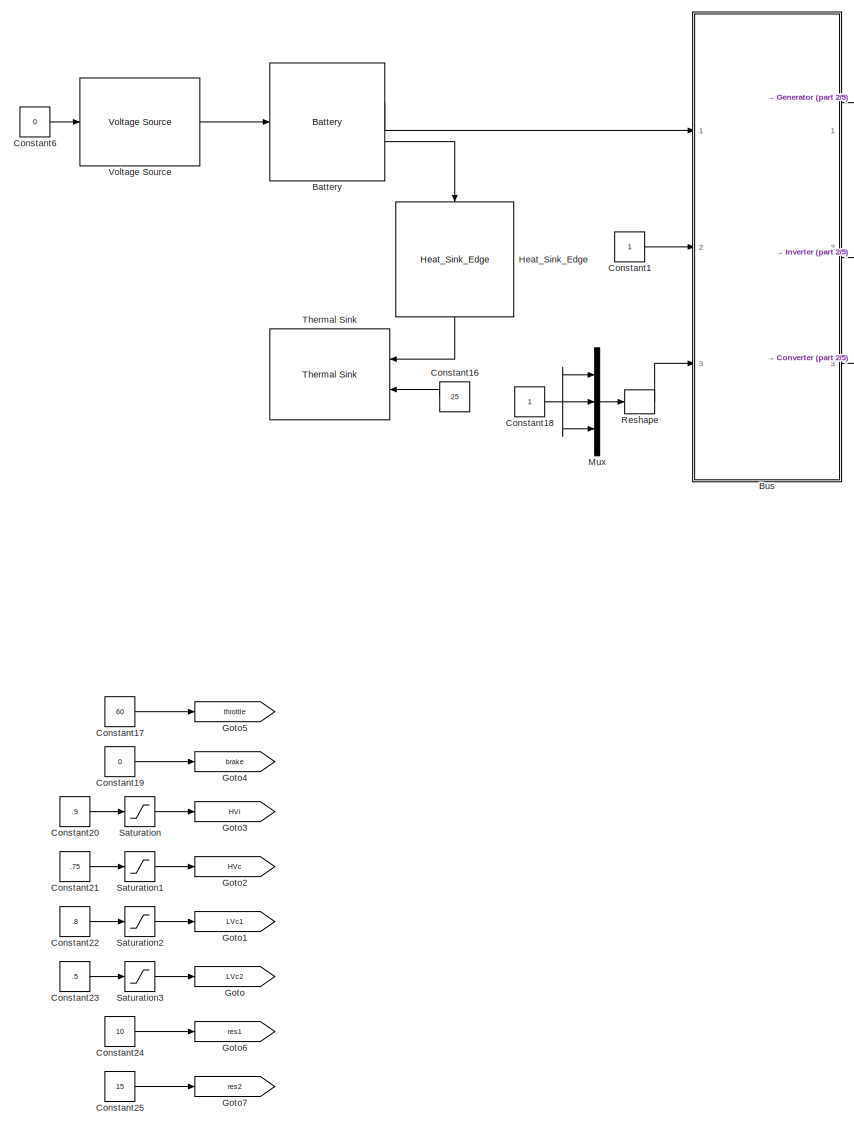
[diagram: root canvas - part 1/5, top left region]
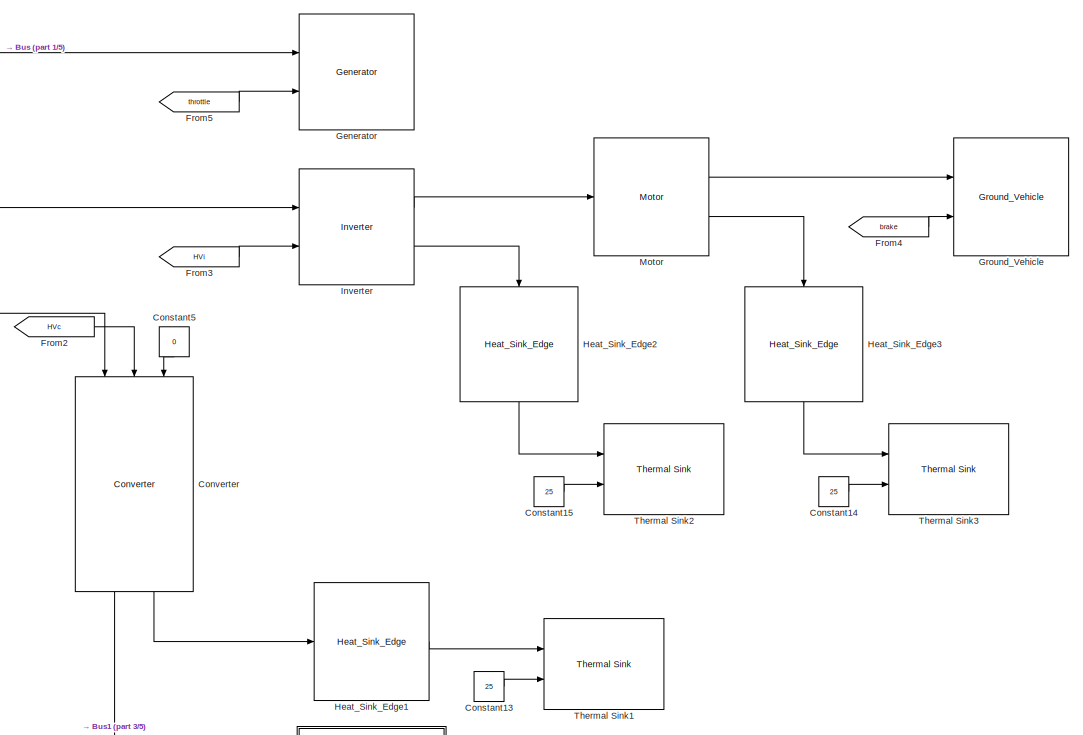
[diagram: root canvas - part 2/5, top center region]
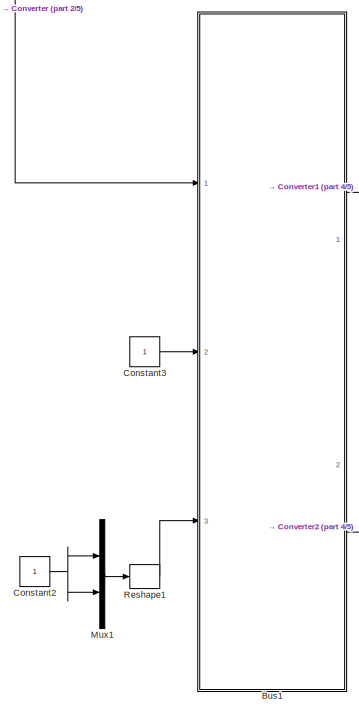
[diagram: root canvas - part 3/5, central region]
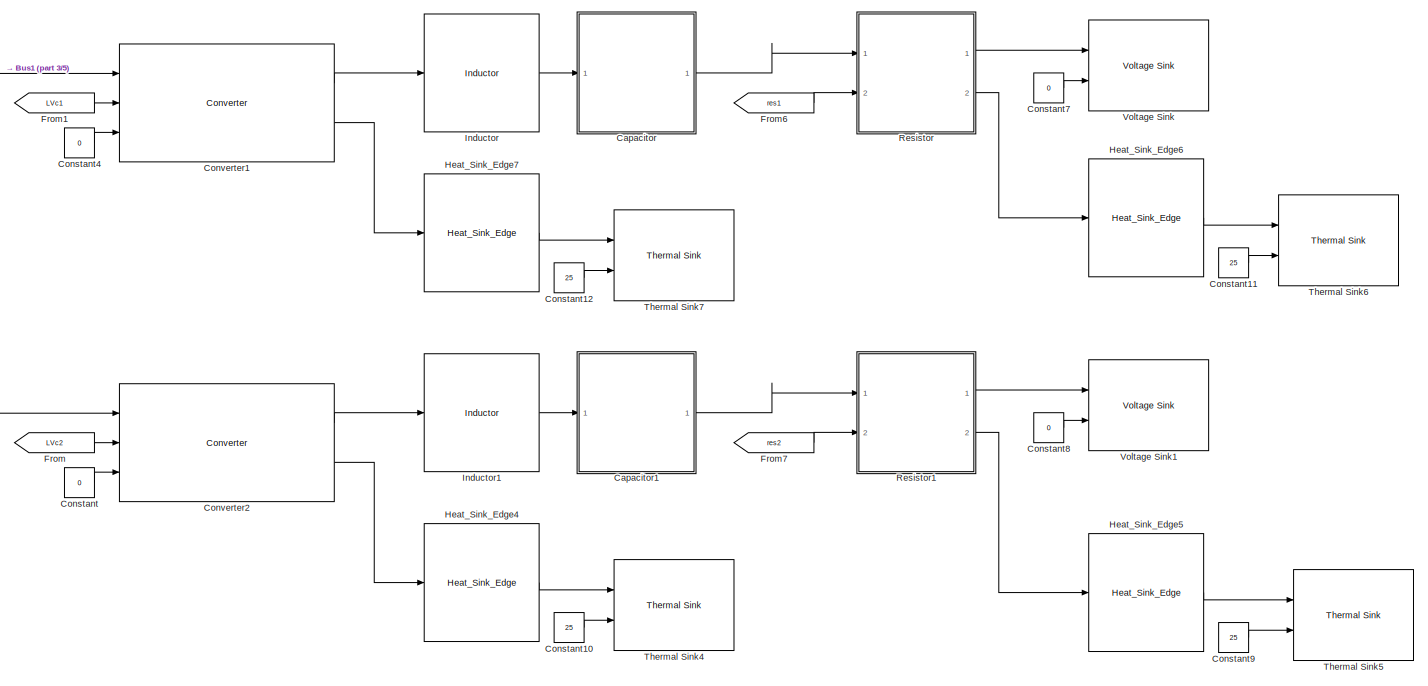
[diagram: root canvas - part 4/5, middle right region]
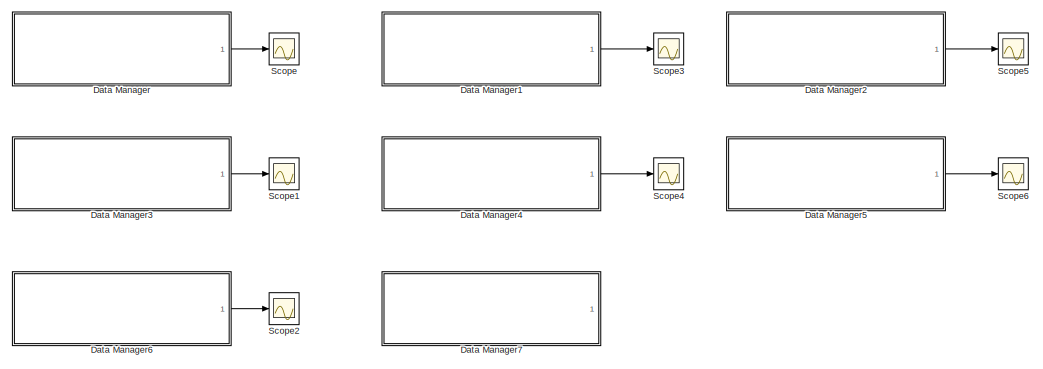
[diagram: root canvas - part 5/5, bottom left region]
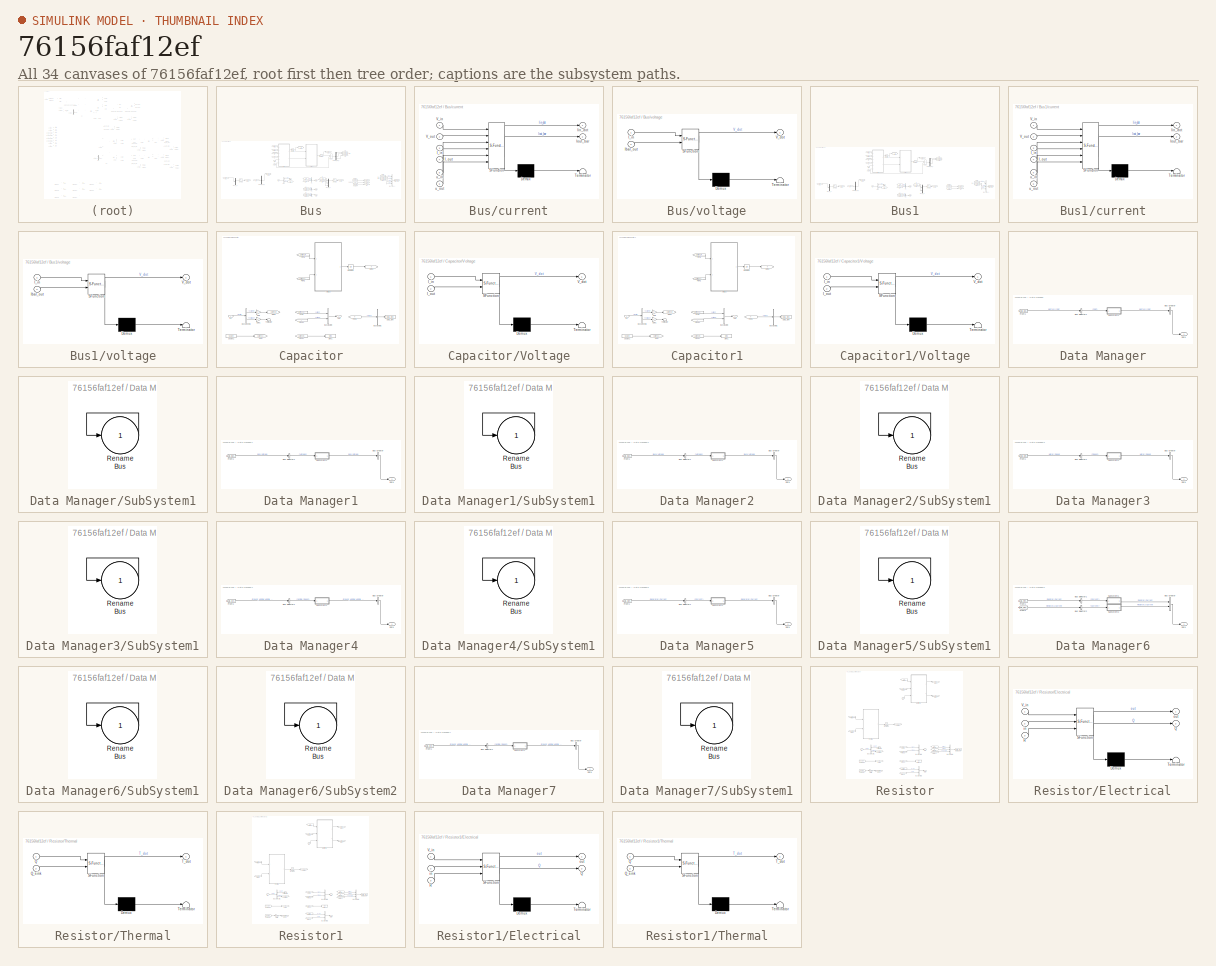
[diagram: thumbnail index - all 34 canvases of the model, root first then tree order]
MODEL slx_76156faf12ef
KIND model
CONFIG AbsTol = auto
CONFIG FixedStep = auto
CONFIG MaxStep = auto
CONFIG MinStep = auto
CONFIG RelTol = 1e-3
CONFIG SampleTimeConstraint = Unconstrained
CONFIG Solver = ode23tb
CONFIG SolverMode = Auto
CONFIG SolverName = ode23tb
CONFIG StartTime = 0.0
CONFIG StopTime = 1000
BLOCK [Reference] Battery  REF=DAEMOT_Lib/Dyn Electrical Comp/Battery
  Ports = [1, 2]
  SourceBlock = DAEMOT_Lib/Dyn Electrical Comp/Battery
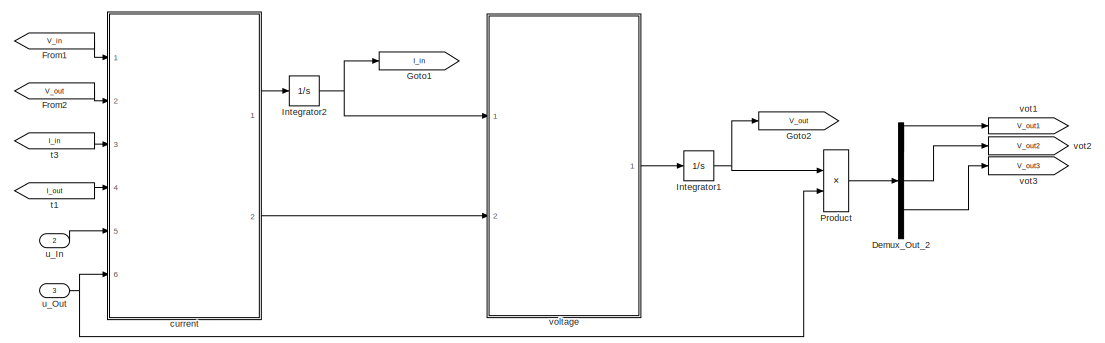
[diagram: Bus - part 1/3, top center region]
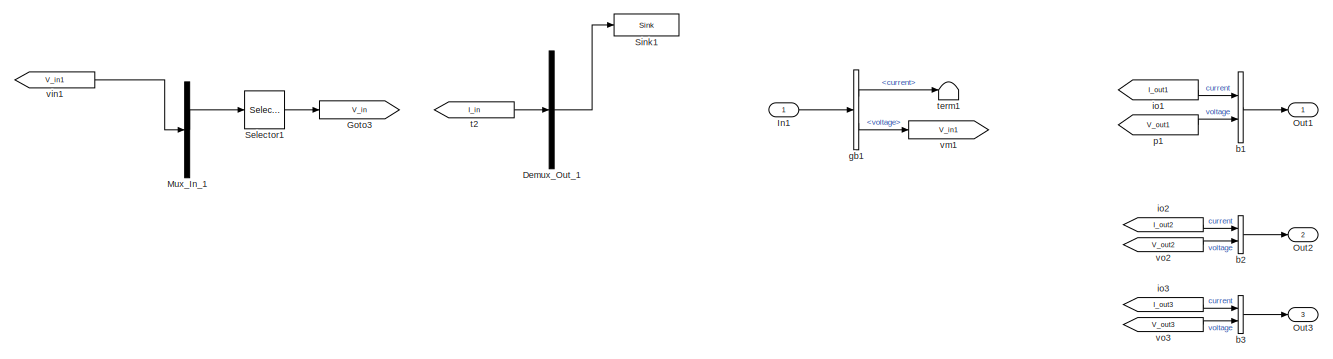
[diagram: Bus - part 2/3, bottom left region]
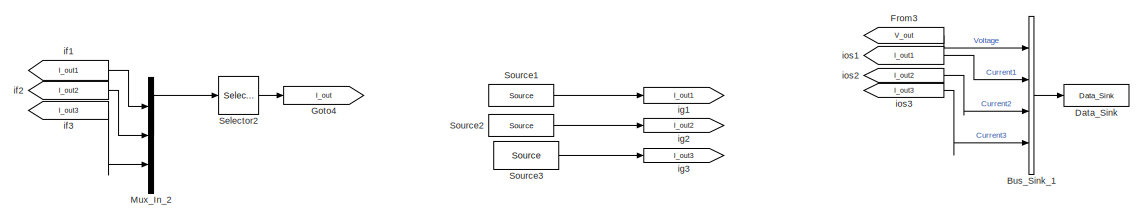
[diagram: Bus - part 3/3, bottom right region]
BLOCK [SubSystem] Bus
  AncestorBlock = DAEMOT_Lib/Electrical Components Chris/Bus
  CopyFcn = h      = get_param(gcb,'handle');   % Get block handle\nblk    = gcb; \n\nset_param(blk, 'LinkStatus', 'inactive')\nclear h\nclear blk
  Ports = [3, 3]
  RequestExecContextInheritance = off
  Variant = off
BLOCK [BusCreator] Bus/Bus_Sink_1
  DisplayOption = bar
  InheritFromInputs = on
  Inputs = 4
  Ports = [4, 1]
BLOCK [Reference] Bus/Data_Sink  REF=DAEMOT_Lib/Support Functions/Data_Sink
  Ports = [1]
  SourceBlock = DAEMOT_Lib/Support Functions/Data_Sink
  SourceType = Data Sink
BLOCK [Demux] Bus/Demux_Out_1
  DisplayOption = bar
  Outputs = 1
  Ports = [1, 1]
BLOCK [Demux] Bus/Demux_Out_2
  DisplayOption = bar
  Outputs = 3
  Ports = [1, 3]
BLOCK [From] Bus/From1
  CloseFcn = tagdialog Close
  GotoTag = V_in
BLOCK [From] Bus/From2
  CloseFcn = tagdialog Close
  GotoTag = V_out
BLOCK [From] Bus/From3
  CloseFcn = tagdialog Close
  GotoTag = V_out
BLOCK [Goto] Bus/Goto1
  GotoTag = I_in
BLOCK [Goto] Bus/Goto2
  GotoTag = V_out
BLOCK [Goto] Bus/Goto3
  GotoTag = V_in
BLOCK [Goto] Bus/Goto4
  GotoTag = I_out
BLOCK [Inport] Bus/In1
  IconDisplay = Port number
BLOCK [Integrator] Bus/Integrator1
  InitialCondition = V_initial
  Ports = [1, 1]
BLOCK [Integrator] Bus/Integrator2
  InitialCondition = I_initial*ones(Num_In,1)
  Ports = [1, 1]
BLOCK [Mux] Bus/Mux_In_1
  DisplayOption = bar
  Inputs = 1
  Ports = [1, 1]
BLOCK [Mux] Bus/Mux_In_2
  DisplayOption = bar
  Inputs = 3
  Ports = [3, 1]
BLOCK [Outport] Bus/Out1
  IconDisplay = Port number
BLOCK [Outport] Bus/Out2
  IconDisplay = Port number
  Port = 2
BLOCK [Outport] Bus/Out3
  IconDisplay = Port number
  Port = 3
BLOCK [Product] Bus/Product
  InputSameDT = off
  OutDataTypeStr = Inherit: Inherit via internal rule
  Ports = [2, 1]
  RndMeth = Floor
  SaturateOnIntegerOverflow = off
BLOCK [Selector] Bus/Selector1
  IndexOptions = Index vector (dialog)
  Indices = [1 ]
  InputPortWidth = 1
  OutputSizes = 1
  Ports = [1, 1]
BLOCK [Selector] Bus/Selector2
  IndexOptions = Index vector (dialog)
  Indices = [1 2 3 ]
  InputPortWidth = 3
  OutputSizes = 1
  Ports = [1, 1]
BLOCK [Reference] Bus/Sink1  REF=DAEMOT_Lib/Support Functions/Sink
  Ports = [1]
  SourceBlock = DAEMOT_Lib/Support Functions/Sink
  SourceType = Sink
BLOCK [Reference] Bus/Source1  REF=DAEMOT_Lib/Support Functions/Source
  Ports = [0, 1]
  SourceBlock = DAEMOT_Lib/Support Functions/Source
  SourceType = Source
BLOCK [Reference] Bus/Source2  REF=DAEMOT_Lib/Support Functions/Source
  Ports = [0, 1]
  SourceBlock = DAEMOT_Lib/Support Functions/Source
  SourceType = Source
BLOCK [Reference] Bus/Source3  REF=DAEMOT_Lib/Support Functions/Source
  Ports = [0, 1]
  SourceBlock = DAEMOT_Lib/Support Functions/Source
  SourceType = Source
BLOCK [BusCreator] Bus/b1
  DisplayOption = bar
  InheritFromInputs = on
  Inputs = 2
  Ports = [2, 1]
BLOCK [BusCreator] Bus/b2
  DisplayOption = bar
  InheritFromInputs = on
  Inputs = 2
  Ports = [2, 1]
BLOCK [BusCreator] Bus/b3
  DisplayOption = bar
  InheritFromInputs = on
  Inputs = 2
  Ports = [2, 1]
BLOCK [SubSystem] Bus/current
  ErrorFcn = Stateflow.Translate.translate
  PermitHierarchicalResolution = ExplicitOnly
  Ports = [6, 2]
  RequestExecContextInheritance = off
  SFBlockType = MATLAB Function
  TreatAsAtomicUnit = on
  Variant = off
BLOCK [Demux] Bus/current/ Demux 
  Outputs = 1
  Ports = [1, 1]
BLOCK [S-Function] Bus/current/ SFunction 
  EnableBusSupport = on
  FunctionName = sf_sfun
  Parameters = L,R
  PortCounts = [6 3]
  Ports = [6, 3]
  SFunctionDeploymentMode = off
  Tag = Stateflow S-Function HILModel 43
BLOCK [Terminator] Bus/current/ Terminator 
BLOCK [Inport] Bus/current/I_in
  IconDisplay = Port number
  Port = 3
BLOCK [Inport] Bus/current/I_out
  IconDisplay = Port number
  Port = 4
BLOCK [Outport] Bus/current/Iin_dot
  IconDisplay = Port number
BLOCK [Outport] Bus/current/Iout_bar
  IconDisplay = Port number
  Port = 2
BLOCK [Inport] Bus/current/V_in
  IconDisplay = Port number
BLOCK [Inport] Bus/current/V_out
  IconDisplay = Port number
  Port = 2
BLOCK [Inport] Bus/current/u_in
  IconDisplay = Port number
  Port = 5
BLOCK [Inport] Bus/current/u_out
  IconDisplay = Port number
  Port = 6
BLOCK [BusSelector] Bus/gb1
  OutputSignals = current,voltage
  Ports = [1, 2]
BLOCK [From] Bus/if1
  GotoTag = I_out1
BLOCK [From] Bus/if2
  GotoTag = I_out2
BLOCK [From] Bus/if3
  GotoTag = I_out3
BLOCK [Goto] Bus/ig1
  GotoTag = I_out1
BLOCK [Goto] Bus/ig2
  GotoTag = I_out2
BLOCK [Goto] Bus/ig3
  GotoTag = I_out3
BLOCK [From] Bus/io1
  GotoTag = I_out1
BLOCK [From] Bus/io2
  GotoTag = I_out2
BLOCK [From] Bus/io3
  GotoTag = I_out3
BLOCK [From] Bus/ios1
  GotoTag = I_out1
BLOCK [From] Bus/ios2
  GotoTag = I_out2
BLOCK [From] Bus/ios3
  GotoTag = I_out3
BLOCK [From] Bus/p1
  GotoTag = V_out1
BLOCK [From] Bus/t1
  CloseFcn = tagdialog Close
  GotoTag = I_out
BLOCK [From] Bus/t2
  CloseFcn = tagdialog Close
  GotoTag = I_in
BLOCK [From] Bus/t3
  CloseFcn = tagdialog Close
  GotoTag = I_in
BLOCK [Terminator] Bus/term1
BLOCK [Inport] Bus/u_In
  IconDisplay = Port number
  Port = 2
BLOCK [Inport] Bus/u_Out
  IconDisplay = Port number
  Port = 3
BLOCK [From] Bus/vin1
  CloseFcn = tagdialog Close
  GotoTag = V_in1
BLOCK [Goto] Bus/vm1
  GotoTag = V_in1
BLOCK [From] Bus/vo2
  GotoTag = V_out2
BLOCK [From] Bus/vo3
  GotoTag = V_out3
BLOCK [SubSystem] Bus/voltage
  ErrorFcn = Stateflow.Translate.translate
  PermitHierarchicalResolution = ExplicitOnly
  Ports = [2, 1]
  RequestExecContextInheritance = off
  SFBlockType = MATLAB Function
  TreatAsAtomicUnit = on
  Variant = off
BLOCK [Demux] Bus/voltage/ Demux 
  Outputs = 1
  Ports = [1, 1]
BLOCK [S-Function] Bus/voltage/ SFunction 
  EnableBusSupport = on
  FunctionName = sf_sfun
  Parameters = C
  PortCounts = [2 2]
  Ports = [2, 2]
  SFunctionDeploymentMode = off
  Tag = Stateflow S-Function HILModel 44
BLOCK [Terminator] Bus/voltage/ Terminator 
BLOCK [Inport] Bus/voltage/I_in
  IconDisplay = Port number
BLOCK [Inport] Bus/voltage/Ibar_out
  IconDisplay = Port number
  Port = 2
BLOCK [Outport] Bus/voltage/V_dot
  IconDisplay = Port number
BLOCK [Goto] Bus/vot1
  GotoTag = V_out1
BLOCK [Goto] Bus/vot2
  GotoTag = V_out2
BLOCK [Goto] Bus/vot3
  GotoTag = V_out3
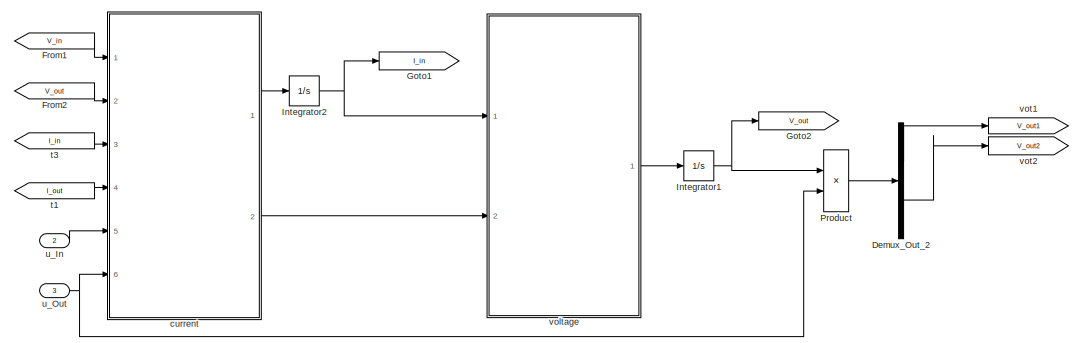
[diagram: Bus1 - part 1/3, top center region]
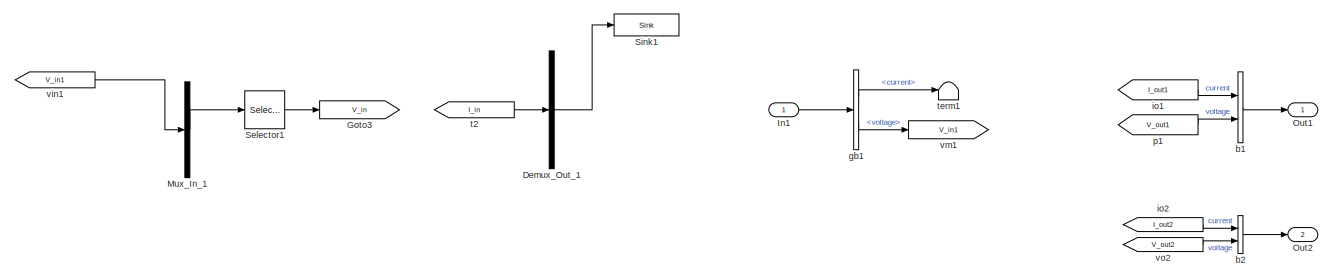
[diagram: Bus1 - part 2/3, bottom left region]
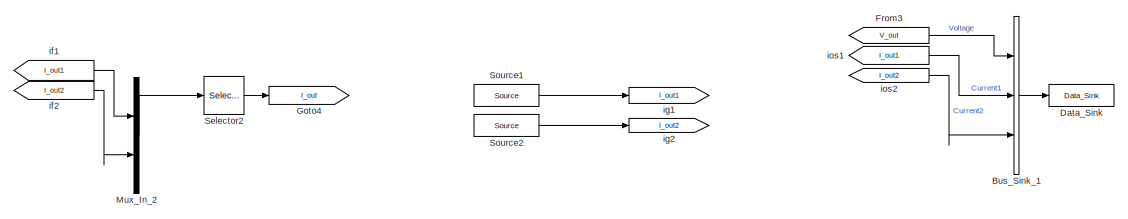
[diagram: Bus1 - part 3/3, bottom right region]
BLOCK [SubSystem] Bus1
  AncestorBlock = DAEMOT_Lib/Electrical Components Chris/Bus
  CopyFcn = h      = get_param(gcb,'handle');   % Get block handle\nblk    = gcb; \n\nset_param(blk, 'LinkStatus', 'inactive')\nclear h\nclear blk
  Ports = [3, 2]
  RequestExecContextInheritance = off
  Variant = off
BLOCK [BusCreator] Bus1/Bus_Sink_1
  DisplayOption = bar
  InheritFromInputs = on
  Inputs = 3
  Ports = [3, 1]
BLOCK [Reference] Bus1/Data_Sink  REF=DAEMOT_Lib/Support Functions/Data_Sink
  Ports = [1]
  SourceBlock = DAEMOT_Lib/Support Functions/Data_Sink
  SourceType = Data Sink
BLOCK [Demux] Bus1/Demux_Out_1
  DisplayOption = bar
  Outputs = 1
  Ports = [1, 1]
BLOCK [Demux] Bus1/Demux_Out_2
  DisplayOption = bar
  Outputs = 2
  Ports = [1, 2]
BLOCK [From] Bus1/From1
  CloseFcn = tagdialog Close
  GotoTag = V_in
BLOCK [From] Bus1/From2
  CloseFcn = tagdialog Close
  GotoTag = V_out
BLOCK [From] Bus1/From3
  CloseFcn = tagdialog Close
  GotoTag = V_out
BLOCK [Goto] Bus1/Goto1
  GotoTag = I_in
BLOCK [Goto] Bus1/Goto2
  GotoTag = V_out
BLOCK [Goto] Bus1/Goto3
  GotoTag = V_in
BLOCK [Goto] Bus1/Goto4
  GotoTag = I_out
BLOCK [Inport] Bus1/In1
  IconDisplay = Port number
BLOCK [Integrator] Bus1/Integrator1
  InitialCondition = V_initial
  Ports = [1, 1]
BLOCK [Integrator] Bus1/Integrator2
  InitialCondition = I_initial*ones(Num_In,1)
  Ports = [1, 1]
BLOCK [Mux] Bus1/Mux_In_1
  DisplayOption = bar
  Inputs = 1
  Ports = [1, 1]
BLOCK [Mux] Bus1/Mux_In_2
  DisplayOption = bar
  Inputs = 2
  Ports = [2, 1]
BLOCK [Outport] Bus1/Out1
  IconDisplay = Port number
BLOCK [Outport] Bus1/Out2
  IconDisplay = Port number
  Port = 2
BLOCK [Product] Bus1/Product
  InputSameDT = off
  OutDataTypeStr = Inherit: Inherit via internal rule
  Ports = [2, 1]
  RndMeth = Floor
  SaturateOnIntegerOverflow = off
BLOCK [Selector] Bus1/Selector1
  IndexOptions = Index vector (dialog)
  Indices = [1 ]
  InputPortWidth = 1
  OutputSizes = 1
  Ports = [1, 1]
BLOCK [Selector] Bus1/Selector2
  IndexOptions = Index vector (dialog)
  Indices = [1 2 ]
  InputPortWidth = 2
  OutputSizes = 1
  Ports = [1, 1]
BLOCK [Reference] Bus1/Sink1  REF=DAEMOT_Lib/Support Functions/Sink
  Ports = [1]
  SourceBlock = DAEMOT_Lib/Support Functions/Sink
  SourceType = Sink
BLOCK [Reference] Bus1/Source1  REF=DAEMOT_Lib/Support Functions/Source
  Ports = [0, 1]
  SourceBlock = DAEMOT_Lib/Support Functions/Source
  SourceType = Source
BLOCK [Reference] Bus1/Source2  REF=DAEMOT_Lib/Support Functions/Source
  Ports = [0, 1]
  SourceBlock = DAEMOT_Lib/Support Functions/Source
  SourceType = Source
BLOCK [BusCreator] Bus1/b1
  DisplayOption = bar
  InheritFromInputs = on
  Inputs = 2
  Ports = [2, 1]
BLOCK [BusCreator] Bus1/b2
  DisplayOption = bar
  InheritFromInputs = on
  Inputs = 2
  Ports = [2, 1]
BLOCK [SubSystem] Bus1/current
  ErrorFcn = Stateflow.Translate.translate
  PermitHierarchicalResolution = ExplicitOnly
  Ports = [6, 2]
  RequestExecContextInheritance = off
  SFBlockType = MATLAB Function
  TreatAsAtomicUnit = on
  Variant = off
BLOCK [Demux] Bus1/current/ Demux 
  Outputs = 1
  Ports = [1, 1]
BLOCK [S-Function] Bus1/current/ SFunction 
  EnableBusSupport = on
  FunctionName = sf_sfun
  Parameters = L,R
  PortCounts = [6 3]
  Ports = [6, 3]
  SFunctionDeploymentMode = off
  Tag = Stateflow S-Function HILModel 1
BLOCK [Terminator] Bus1/current/ Terminator 
BLOCK [Inport] Bus1/current/I_in
  IconDisplay = Port number
  Port = 3
BLOCK [Inport] Bus1/current/I_out
  IconDisplay = Port number
  Port = 4
BLOCK [Outport] Bus1/current/Iin_dot
  IconDisplay = Port number
BLOCK [Outport] Bus1/current/Iout_bar
  IconDisplay = Port number
  Port = 2
BLOCK [Inport] Bus1/current/V_in
  IconDisplay = Port number
BLOCK [Inport] Bus1/current/V_out
  IconDisplay = Port number
  Port = 2
BLOCK [Inport] Bus1/current/u_in
  IconDisplay = Port number
  Port = 5
BLOCK [Inport] Bus1/current/u_out
  IconDisplay = Port number
  Port = 6
BLOCK [BusSelector] Bus1/gb1
  OutputSignals = current,voltage
  Ports = [1, 2]
BLOCK [From] Bus1/if1
  GotoTag = I_out1
BLOCK [From] Bus1/if2
  GotoTag = I_out2
BLOCK [Goto] Bus1/ig1
  GotoTag = I_out1
BLOCK [Goto] Bus1/ig2
  GotoTag = I_out2
BLOCK [From] Bus1/io1
  GotoTag = I_out1
BLOCK [From] Bus1/io2
  GotoTag = I_out2
BLOCK [From] Bus1/ios1
  GotoTag = I_out1
BLOCK [From] Bus1/ios2
  GotoTag = I_out2
BLOCK [From] Bus1/p1
  GotoTag = V_out1
BLOCK [From] Bus1/t1
  CloseFcn = tagdialog Close
  GotoTag = I_out
BLOCK [From] Bus1/t2
  CloseFcn = tagdialog Close
  GotoTag = I_in
BLOCK [From] Bus1/t3
  CloseFcn = tagdialog Close
  GotoTag = I_in
BLOCK [Terminator] Bus1/term1
BLOCK [Inport] Bus1/u_In
  IconDisplay = Port number
  Port = 2
BLOCK [Inport] Bus1/u_Out
  IconDisplay = Port number
  Port = 3
BLOCK [From] Bus1/vin1
  CloseFcn = tagdialog Close
  GotoTag = V_in1
BLOCK [Goto] Bus1/vm1
  GotoTag = V_in1
BLOCK [From] Bus1/vo2
  GotoTag = V_out2
BLOCK [SubSystem] Bus1/voltage
  ErrorFcn = Stateflow.Translate.translate
  PermitHierarchicalResolution = ExplicitOnly
  Ports = [2, 1]
  RequestExecContextInheritance = off
  SFBlockType = MATLAB Function
  TreatAsAtomicUnit = on
  Variant = off
BLOCK [Demux] Bus1/voltage/ Demux 
  Outputs = 1
  Ports = [1, 1]
BLOCK [S-Function] Bus1/voltage/ SFunction 
  EnableBusSupport = on
  FunctionName = sf_sfun
  Parameters = C
  PortCounts = [2 2]
  Ports = [2, 2]
  SFunctionDeploymentMode = off
  Tag = Stateflow S-Function HILModel 2
BLOCK [Terminator] Bus1/voltage/ Terminator 
BLOCK [Inport] Bus1/voltage/I_in
  IconDisplay = Port number
BLOCK [Inport] Bus1/voltage/Ibar_out
  IconDisplay = Port number
  Port = 2
BLOCK [Outport] Bus1/voltage/V_dot
  IconDisplay = Port number
BLOCK [Goto] Bus1/vot1
  GotoTag = V_out1
BLOCK [Goto] Bus1/vot2
  GotoTag = V_out2
BLOCK [SubSystem] Capacitor
  AncestorBlock = DAEMOT_Lib/Electrical Components Chris/Capacitor
  Ports = [1, 1]
  RequestExecContextInheritance = off
  Variant = off
BLOCK [BusCreator] Capacitor/Bus Creator1
  DisplayOption = bar
  InheritFromInputs = on
  Inputs = 1
  Ports = [1, 1]
BLOCK [BusCreator] Capacitor/Bus Creator3
  DisplayOption = bar
  InheritFromInputs = on
  Inputs = 2
  Ports = [2, 1]
BLOCK [BusSelector] Capacitor/Bus Selector1
  OutputSignals = current,voltage
  Ports = [1, 2]
BLOCK [Reference] Capacitor/Data_Sink  REF=DAEMOT_Lib/Support Functions/Data_Sink
  Ports = [1]
  SourceBlock = DAEMOT_Lib/Support Functions/Data_Sink
  SourceType = Data Sink
BLOCK [From] Capacitor/From1
  GotoTag = Current_out
BLOCK [From] Capacitor/From10
  GotoTag = V
BLOCK [From] Capacitor/From12
  GotoTag = Current_in
BLOCK [From] Capacitor/From2
  GotoTag = V
BLOCK [From] Capacitor/From6
  GotoTag = Current_in
BLOCK [From] Capacitor/From8
  GotoTag = Current_out
BLOCK [Gain] Capacitor/Gain
  OutDataTypeStr = Inherit: Inherit via internal rule
  ParamDataTypeStr = Inherit: Inherit via internal rule
  SaturateOnIntegerOverflow = off
BLOCK [Gain] Capacitor/Gain1
  OutDataTypeStr = Inherit: Inherit via internal rule
  ParamDataTypeStr = Inherit: Inherit via internal rule
  SaturateOnIntegerOverflow = off
BLOCK [Goto] Capacitor/Goto1
  GotoTag = V
BLOCK [Goto] Capacitor/Goto2
  GotoTag = Current_in
BLOCK [Goto] Capacitor/Goto7
  GotoTag = Current_out
BLOCK [Inport] Capacitor/In1
  IconDisplay = Port number
BLOCK [Integrator] Capacitor/Integrator2
  InitialCondition = V_initial
  Ports = [1, 1]
BLOCK [Outport] Capacitor/Out1
  IconDisplay = Port number
BLOCK [Reference] Capacitor/Sink1  REF=DAEMOT_Lib/Support Functions/Sink
  Ports = [1]
  SourceBlock = DAEMOT_Lib/Support Functions/Sink
  SourceType = Sink
BLOCK [Reference] Capacitor/Source1  REF=DAEMOT_Lib/Support Functions/Source
  Ports = [0, 1]
  SourceBlock = DAEMOT_Lib/Support Functions/Source
  SourceType = Source
BLOCK [Terminator] Capacitor/Terminator
BLOCK [SubSystem] Capacitor/Voltage
  ErrorFcn = Stateflow.Translate.translate
  PermitHierarchicalResolution = ExplicitOnly
  Ports = [2, 1]
  RequestExecContextInheritance = off
  SFBlockType = MATLAB Function
  TreatAsAtomicUnit = on
  Variant = off
BLOCK [Demux] Capacitor/Voltage/ Demux 
  Outputs = 1
  Ports = [1, 1]
BLOCK [S-Function] Capacitor/Voltage/ SFunction 
  EnableBusSupport = on
  FunctionName = sf_sfun
  Parameters = C
  PortCounts = [2 2]
  Ports = [2, 2]
  SFunctionDeploymentMode = off
  Tag = Stateflow S-Function HILModel 5
BLOCK [Terminator] Capacitor/Voltage/ Terminator 
BLOCK [Inport] Capacitor/Voltage/I_in
  IconDisplay = Port number
BLOCK [Inport] Capacitor/Voltage/I_out
  IconDisplay = Port number
  Port = 2
BLOCK [Outport] Capacitor/Voltage/V_dot
  IconDisplay = Port number
BLOCK [SubSystem] Capacitor1
  AncestorBlock = DAEMOT_Lib/Electrical Components Chris/Capacitor
  Ports = [1, 1]
  RequestExecContextInheritance = off
  Variant = off
BLOCK [BusCreator] Capacitor1/Bus Creator1
  DisplayOption = bar
  InheritFromInputs = on
  Inputs = 1
  Ports = [1, 1]
BLOCK [BusCreator] Capacitor1/Bus Creator3
  DisplayOption = bar
  InheritFromInputs = on
  Inputs = 2
  Ports = [2, 1]
BLOCK [BusSelector] Capacitor1/Bus Selector1
  OutputSignals = current,voltage
  Ports = [1, 2]
BLOCK [Reference] Capacitor1/Data_Sink  REF=DAEMOT_Lib/Support Functions/Data_Sink
  Ports = [1]
  SourceBlock = DAEMOT_Lib/Support Functions/Data_Sink
  SourceType = Data Sink
BLOCK [From] Capacitor1/From1
  GotoTag = Current_out
BLOCK [From] Capacitor1/From10
  GotoTag = V
BLOCK [From] Capacitor1/From12
  GotoTag = Current_in
BLOCK [From] Capacitor1/From2
  GotoTag = V
BLOCK [From] Capacitor1/From6
  GotoTag = Current_in
BLOCK [From] Capacitor1/From8
  GotoTag = Current_out
BLOCK [Gain] Capacitor1/Gain
  OutDataTypeStr = Inherit: Inherit via internal rule
  ParamDataTypeStr = Inherit: Inherit via internal rule
  SaturateOnIntegerOverflow = off
BLOCK [Gain] Capacitor1/Gain1
  OutDataTypeStr = Inherit: Inherit via internal rule
  ParamDataTypeStr = Inherit: Inherit via internal rule
  SaturateOnIntegerOverflow = off
BLOCK [Goto] Capacitor1/Goto1
  GotoTag = V
BLOCK [Goto] Capacitor1/Goto2
  GotoTag = Current_in
BLOCK [Goto] Capacitor1/Goto7
  GotoTag = Current_out
BLOCK [Inport] Capacitor1/In1
  IconDisplay = Port number
BLOCK [Integrator] Capacitor1/Integrator2
  InitialCondition = V_initial
  Ports = [1, 1]
BLOCK [Outport] Capacitor1/Out1
  IconDisplay = Port number
BLOCK [Reference] Capacitor1/Sink1  REF=DAEMOT_Lib/Support Functions/Sink
  Ports = [1]
  SourceBlock = DAEMOT_Lib/Support Functions/Sink
  SourceType = Sink
BLOCK [Reference] Capacitor1/Source1  REF=DAEMOT_Lib/Support Functions/Source
  Ports = [0, 1]
  SourceBlock = DAEMOT_Lib/Support Functions/Source
  SourceType = Source
BLOCK [Terminator] Capacitor1/Terminator
BLOCK [SubSystem] Capacitor1/Voltage
  ErrorFcn = Stateflow.Translate.translate
  PermitHierarchicalResolution = ExplicitOnly
  Ports = [2, 1]
  RequestExecContextInheritance = off
  SFBlockType = MATLAB Function
  TreatAsAtomicUnit = on
  Variant = off
BLOCK [Demux] Capacitor1/Voltage/ Demux 
  Outputs = 1
  Ports = [1, 1]
BLOCK [S-Function] Capacitor1/Voltage/ SFunction 
  EnableBusSupport = on
  FunctionName = sf_sfun
  Parameters = C
  PortCounts = [2 2]
  Ports = [2, 2]
  SFunctionDeploymentMode = off
  Tag = Stateflow S-Function HILModel 6
BLOCK [Terminator] Capacitor1/Voltage/ Terminator 
BLOCK [Inport] Capacitor1/Voltage/I_in
  IconDisplay = Port number
BLOCK [Inport] Capacitor1/Voltage/I_out
  IconDisplay = Port number
  Port = 2
BLOCK [Outport] Capacitor1/Voltage/V_dot
  IconDisplay = Port number
BLOCK [Constant] Constant
  Value = 0
BLOCK [Constant] Constant1
BLOCK [Constant] Constant10
  Value = 25
BLOCK [Constant] Constant11
  Value = 25
BLOCK [Constant] Constant12
  Value = 25
BLOCK [Constant] Constant13
  Value = 25
BLOCK [Constant] Constant14
  Value = 25
BLOCK [Constant] Constant15
  Value = 25
BLOCK [Constant] Constant16
  Value = 25
BLOCK [Constant] Constant17
  Value = 60
BLOCK [Constant] Constant18
BLOCK [Constant] Constant19
  Value = 0
BLOCK [Constant] Constant2
BLOCK [Constant] Constant20
  Value = .9
BLOCK [Constant] Constant21
  Value = .75
BLOCK [Constant] Constant22
  Value = .8
BLOCK [Constant] Constant23
  Value = .5
BLOCK [Constant] Constant24
  Value = 10
BLOCK [Constant] Constant25
  Value = 15
BLOCK [Constant] Constant3
BLOCK [Constant] Constant4
  Value = 0
BLOCK [Constant] Constant5
  Value = 0
BLOCK [Constant] Constant6
  Value = 0
BLOCK [Constant] Constant7
  Value = 0
BLOCK [Constant] Constant8
  Value = 0
BLOCK [Constant] Constant9
  Value = 25
BLOCK [Reference] Converter  REF=DAEMOT_Lib/Dyn Electrical Comp/Converter
  Ports = [3, 2]
  SourceBlock = DAEMOT_Lib/Dyn Electrical Comp/Converter
BLOCK [Reference] Converter1  REF=DAEMOT_Lib/Dyn Electrical Comp/Converter
  Ports = [3, 2]
  SourceBlock = DAEMOT_Lib/Dyn Electrical Comp/Converter
BLOCK [Reference] Converter2  REF=DAEMOT_Lib/Dyn Electrical Comp/Converter
  Ports = [3, 2]
  SourceBlock = DAEMOT_Lib/Dyn Electrical Comp/Converter
BLOCK [SubSystem] Data Manager
  AncestorBlock = DAEMOT_Lib/Support Functions/Data Manager
  OpenFcn = data_manager
  Ports = [0, 1]
  RequestExecContextInheritance = off
  UserDataPersistent = on
  Variant = off
BLOCK [BusCreator] Data Manager/Bus Creator
  DisplayOption = bar
  InheritFromInputs = on
  Inputs = 1
  Ports = [1, 1]
BLOCK [BusSelector] Data Manager/Bus Selector1
  OutputSignals = SOC
  Ports = [1, 1]
BLOCK [Outport] Data Manager/Data
  IconDisplay = Port number
BLOCK [From] Data Manager/From1
  GotoTag = gdata_BatteryData_Sink
  TagVisibility = global
  UserDataPersistent = on
BLOCK [SubSystem] Data Manager/SubSystem1
  Ports = [1, 1]
  RequestExecContextInheritance = off
  Variant = off
BLOCK [Outport] Data Manager/SubSystem1/Bus
  IconDisplay = Port number
BLOCK [Inport] Data Manager/SubSystem1/Rename
  IconDisplay = Port number
BLOCK [SubSystem] Data Manager1
  AncestorBlock = DAEMOT_Lib/Support Functions/Data Manager
  OpenFcn = data_manager
  Ports = [0, 1]
  RequestExecContextInheritance = off
  UserDataPersistent = on
  Variant = off
BLOCK [BusCreator] Data Manager1/Bus Creator
  DisplayOption = bar
  InheritFromInputs = on
  Inputs = 1
  Ports = [1, 1]
BLOCK [BusSelector] Data Manager1/Bus Selector1
  OutputSignals = Voltage
  Ports = [1, 1]
BLOCK [Outport] Data Manager1/Data
  IconDisplay = Port number
BLOCK [From] Data Manager1/From1
  GotoTag = gdata_BusData_Sink
  TagVisibility = global
  UserDataPersistent = on
BLOCK [SubSystem] Data Manager1/SubSystem1
  Ports = [1, 1]
  RequestExecContextInheritance = off
  Variant = off
BLOCK [Outport] Data Manager1/SubSystem1/Bus
  IconDisplay = Port number
BLOCK [Inport] Data Manager1/SubSystem1/Rename
  IconDisplay = Port number
BLOCK [SubSystem] Data Manager2
  AncestorBlock = DAEMOT_Lib/Support Functions/Data Manager
  OpenFcn = data_manager
  Ports = [0, 1]
  RequestExecContextInheritance = off
  UserDataPersistent = on
  Variant = off
BLOCK [BusCreator] Data Manager2/Bus Creator
  DisplayOption = bar
  InheritFromInputs = on
  Inputs = 1
  Ports = [1, 1]
BLOCK [BusSelector] Data Manager2/Bus Selector1
  OutputSignals = Voltage
  Ports = [1, 1]
BLOCK [Outport] Data Manager2/Data
  IconDisplay = Port number
BLOCK [From] Data Manager2/From1
  GotoTag = gdata_Bus1Data_Sink
  TagVisibility = global
  UserDataPersistent = on
BLOCK [SubSystem] Data Manager2/SubSystem1
  Ports = [1, 1]
  RequestExecContextInheritance = off
  Variant = off
BLOCK [Outport] Data Manager2/SubSystem1/Bus
  IconDisplay = Port number
BLOCK [Inport] Data Manager2/SubSystem1/Rename
  IconDisplay = Port number
BLOCK [SubSystem] Data Manager3
  AncestorBlock = DAEMOT_Lib/Support Functions/Data Manager
  OpenFcn = data_manager
  Ports = [0, 1]
  RequestExecContextInheritance = off
  UserDataPersistent = on
  Variant = off
BLOCK [BusCreator] Data Manager3/Bus Creator
  DisplayOption = bar
  InheritFromInputs = on
  Inputs = 1
  Ports = [1, 1]
BLOCK [BusSelector] Data Manager3/Bus Selector1
  OutputSignals = Speed
  Ports = [1, 1]
BLOCK [Outport] Data Manager3/Data
  IconDisplay = Port number
BLOCK [From] Data Manager3/From1
  GotoTag = gdata_MotorData_Sink
  TagVisibility = global
  UserDataPersistent = on
BLOCK [SubSystem] Data Manager3/SubSystem1
  Ports = [1, 1]
  RequestExecContextInheritance = off
  Variant = off
BLOCK [Outport] Data Manager3/SubSystem1/Bus
  IconDisplay = Port number
BLOCK [Inport] Data Manager3/SubSystem1/Rename
  IconDisplay = Port number
BLOCK [SubSystem] Data Manager4
  AncestorBlock = DAEMOT_Lib/Support Functions/Data Manager
  OpenFcn = data_manager
  Ports = [0, 1]
  RequestExecContextInheritance = off
  UserDataPersistent = on
  Variant = off
BLOCK [BusCreator] Data Manager4/Bus Creator
  DisplayOption = bar
  InheritFromInputs = on
  Inputs = 1
  Ports = [1, 1]
BLOCK [BusSelector] Data Manager4/Bus Selector1
  OutputSignals = Vehicle Speed
  Ports = [1, 1]
BLOCK [Outport] Data Manager4/Data
  IconDisplay = Port number
BLOCK [From] Data Manager4/From1
  GotoTag = gdata_Ground_VehicleData_Sink
  TagVisibility = global
  UserDataPersistent = on
BLOCK [SubSystem] Data Manager4/SubSystem1
  Ports = [1, 1]
  RequestExecContextInheritance = off
  Variant = off
BLOCK [Outport] Data Manager4/SubSystem1/Bus
  IconDisplay = Port number
BLOCK [Inport] Data Manager4/SubSystem1/Rename
  IconDisplay = Port number
BLOCK [SubSystem] Data Manager5
  AncestorBlock = DAEMOT_Lib/Support Functions/Data Manager
  OpenFcn = data_manager
  Ports = [0, 1]
  RequestExecContextInheritance = off
  UserDataPersistent = on
  Variant = off
BLOCK [BusCreator] Data Manager5/Bus Creator
  DisplayOption = bar
  InheritFromInputs = on
  Inputs = 1
  Ports = [1, 1]
BLOCK [BusSelector] Data Manager5/Bus Selector1
  OutputSignals = Current
  Ports = [1, 1]
BLOCK [Outport] Data Manager5/Data
  IconDisplay = Port number
BLOCK [From] Data Manager5/From1
  GotoTag = gdata_GeneratorData_Sink
  TagVisibility = global
  UserDataPersistent = on
BLOCK [SubSystem] Data Manager5/SubSystem1
  Ports = [1, 1]
  RequestExecContextInheritance = off
  Variant = off
BLOCK [Outport] Data Manager5/SubSystem1/Bus
  IconDisplay = Port number
BLOCK [Inport] Data Manager5/SubSystem1/Rename
  IconDisplay = Port number
BLOCK [SubSystem] Data Manager6
  AncestorBlock = DAEMOT_Lib/Support Functions/Data Manager
  OpenFcn = data_manager
  Ports = [0, 1]
  RequestExecContextInheritance = off
  UserDataPersistent = on
  Variant = off
BLOCK [BusCreator] Data Manager6/Bus Creator
  DisplayOption = bar
  InheritFromInputs = on
  Inputs = 2
  Ports = [2, 1]
BLOCK [BusSelector] Data Manager6/Bus Selector1
  OutputSignals = Current
  Ports = [1, 1]
BLOCK [BusSelector] Data Manager6/Bus Selector2
  OutputSignals = Current
  Ports = [1, 1]
BLOCK [Outport] Data Manager6/Data
  IconDisplay = Port number
BLOCK [From] Data Manager6/From1
  GotoTag = gdata_ResistorData_Sink
  TagVisibility = global
  UserDataPersistent = on
BLOCK [From] Data Manager6/From2
  GotoTag = gdata_Resistor1Data_Sink
  TagVisibility = global
  UserDataPersistent = on
BLOCK [SubSystem] Data Manager6/SubSystem1
  Ports = [1, 1]
  RequestExecContextInheritance = off
  Variant = off
BLOCK [Outport] Data Manager6/SubSystem1/Bus
  IconDisplay = Port number
BLOCK [Inport] Data Manager6/SubSystem1/Rename
  IconDisplay = Port number
BLOCK [SubSystem] Data Manager6/SubSystem2
  Ports = [1, 1]
  RequestExecContextInheritance = off
  Variant = off
BLOCK [Outport] Data Manager6/SubSystem2/Bus
  IconDisplay = Port number
BLOCK [Inport] Data Manager6/SubSystem2/Rename
  IconDisplay = Port number
BLOCK [SubSystem] Data Manager7
  AncestorBlock = DAEMOT_Lib/Support Functions/Data Manager
  OpenFcn = data_manager
  Ports = [0, 1]
  RequestExecContextInheritance = off
  UserDataPersistent = on
  Variant = off
BLOCK [BusCreator] Data Manager7/Bus Creator
  DisplayOption = bar
  InheritFromInputs = on
  Inputs = 1
  Ports = [1, 1]
BLOCK [BusSelector] Data Manager7/Bus Selector1
  OutputSignals = Vehicle Speed
  Ports = [1, 1]
BLOCK [Outport] Data Manager7/Data
  IconDisplay = Port number
BLOCK [From] Data Manager7/From1
  GotoTag = gdata_Ground_VehicleData_Sink
  TagVisibility = global
  UserDataPersistent = on
BLOCK [SubSystem] Data Manager7/SubSystem1
  Ports = [1, 1]
  RequestExecContextInheritance = off
  Variant = off
BLOCK [Outport] Data Manager7/SubSystem1/Bus
  IconDisplay = Port number
BLOCK [Inport] Data Manager7/SubSystem1/Rename
  IconDisplay = Port number
BLOCK [From] From
  GotoTag = LVc2
BLOCK [From] From1
  GotoTag = LVc1
BLOCK [From] From2
  GotoTag = HVc
BLOCK [From] From3
  GotoTag = HVi
BLOCK [From] From4
  GotoTag = brake
BLOCK [From] From5
  GotoTag = throttle
BLOCK [From] From6
  GotoTag = res1
BLOCK [From] From7
  GotoTag = res2
BLOCK [Reference] Generator  REF=DAEMOT_Lib/Dyn Electrical Comp/Generator
  Ports = [2]
  SourceBlock = DAEMOT_Lib/Dyn Electrical Comp/Generator
BLOCK [Goto] Goto
  GotoTag = LVc2
BLOCK [Goto] Goto1
  GotoTag = LVc1
BLOCK [Goto] Goto2
  GotoTag = HVc
BLOCK [Goto] Goto3
  GotoTag = HVi
BLOCK [Goto] Goto4
  GotoTag = brake
BLOCK [Goto] Goto5
  GotoTag = throttle
BLOCK [Goto] Goto6
  GotoTag = res1
BLOCK [Goto] Goto7
  GotoTag = res2
BLOCK [Reference] Ground_Vehicle  REF=DAEMOT_Lib/Dyn Electrical Comp/Ground_Vehicle
  Ports = [2]
  SourceBlock = DAEMOT_Lib/Dyn Electrical Comp/Ground_Vehicle
BLOCK [Reference] Heat_Sink_Edge  REF=DAEMOT_Lib/Dyn Electrical Comp/Heat_Sink_Edge
  Ports = [1, 1]
  SourceBlock = DAEMOT_Lib/Dyn Electrical Comp/Heat_Sink_Edge
BLOCK [Reference] Heat_Sink_Edge1  REF=DAEMOT_Lib/Dyn Electrical Comp/Heat_Sink_Edge
  Ports = [1, 1]
  SourceBlock = DAEMOT_Lib/Dyn Electrical Comp/Heat_Sink_Edge
BLOCK [Reference] Heat_Sink_Edge2  REF=DAEMOT_Lib/Dyn Electrical Comp/Heat_Sink_Edge
  Ports = [1, 1]
  SourceBlock = DAEMOT_Lib/Dyn Electrical Comp/Heat_Sink_Edge
BLOCK [Reference] Heat_Sink_Edge3  REF=DAEMOT_Lib/Dyn Electrical Comp/Heat_Sink_Edge
  Ports = [1, 1]
  SourceBlock = DAEMOT_Lib/Dyn Electrical Comp/Heat_Sink_Edge
BLOCK [Reference] Heat_Sink_Edge4  REF=DAEMOT_Lib/Dyn Electrical Comp/Heat_Sink_Edge
  Ports = [1, 1]
  SourceBlock = DAEMOT_Lib/Dyn Electrical Comp/Heat_Sink_Edge
BLOCK [Reference] Heat_Sink_Edge5  REF=DAEMOT_Lib/Dyn Electrical Comp/Heat_Sink_Edge
  Ports = [1, 1]
  SourceBlock = DAEMOT_Lib/Dyn Electrical Comp/Heat_Sink_Edge
BLOCK [Reference] Heat_Sink_Edge6  REF=DAEMOT_Lib/Dyn Electrical Comp/Heat_Sink_Edge
  Ports = [1, 1]
  SourceBlock = DAEMOT_Lib/Dyn Electrical Comp/Heat_Sink_Edge
BLOCK [Reference] Heat_Sink_Edge7  REF=DAEMOT_Lib/Dyn Electrical Comp/Heat_Sink_Edge
  Ports = [1, 1]
  SourceBlock = DAEMOT_Lib/Dyn Electrical Comp/Heat_Sink_Edge
BLOCK [Reference] Inductor  REF=DAEMOT_Lib/Dyn Electrical Comp/Inductor
  Ports = [1, 1]
  SourceBlock = DAEMOT_Lib/Dyn Electrical Comp/Inductor
BLOCK [Reference] Inductor1  REF=DAEMOT_Lib/Dyn Electrical Comp/Inductor
  Ports = [1, 1]
  SourceBlock = DAEMOT_Lib/Dyn Electrical Comp/Inductor
BLOCK [Reference] Inverter  REF=DAEMOT_Lib/Dyn Electrical Comp/Inverter
  Ports = [2, 2]
  SourceBlock = DAEMOT_Lib/Dyn Electrical Comp/Inverter
BLOCK [Reference] Motor  REF=DAEMOT_Lib/Dyn Electrical Comp/Motor
  Ports = [1, 2]
  SourceBlock = DAEMOT_Lib/Dyn Electrical Comp/Motor
BLOCK [Mux] Mux
  DisplayOption = bar
  Inputs = 3
  Ports = [3, 1]
BLOCK [Mux] Mux1
  DisplayOption = bar
  Inputs = 2
  Ports = [2, 1]
BLOCK [Reshape] Reshape
  OutputDimensionality = Column vector (2-D)
  Ports = [1, 1]
BLOCK [Reshape] Reshape1
  OutputDimensionality = Column vector (2-D)
  Ports = [1, 1]
BLOCK [SubSystem] Resistor
  AncestorBlock = DAEMOT_Lib/Electrical Components Chris/Resistor
  CopyFcn = h      = get_param(gcb,'handle');   % Get block handle\nblk    = gcb; \n\nset_param(blk, 'LinkStatus', 'inactive')\nclear h\nclear blk
  Ports = [2, 2]
  RequestExecContextInheritance = off
  Variant = off
BLOCK [BusCreator] Resistor/Bus Creator1
  DisplayOption = bar
  InheritFromInputs = on
  Inputs = 3
  Ports = [3, 1]
BLOCK [BusCreator] Resistor/Bus Creator2
  DisplayOption = bar
  InheritFromInputs = on
  Inputs = 2
  Ports = [2, 1]
BLOCK [BusCreator] Resistor/Bus Creator3
  DisplayOption = bar
  InheritFromInputs = on
  Inputs = 2
  Ports = [2, 1]
BLOCK [BusSelector] Resistor/Bus Selector1
  OutputSignals = current,voltage
  Ports = [1, 2]
BLOCK [Reference] Resistor/Data_Sink  REF=DAEMOT_Lib/Support Functions/Data_Sink
  Ports = [1]
  SourceBlock = DAEMOT_Lib/Support Functions/Data_Sink
  SourceType = Data Sink
BLOCK [SubSystem] Resistor/Electrical
  ErrorFcn = Stateflow.Translate.translate
  PermitHierarchicalResolution = ExplicitOnly
  Ports = [3, 2]
  RequestExecContextInheritance = off
  SFBlockType = MATLAB Function
  TreatAsAtomicUnit = on
  Variant = off
BLOCK [Demux] Resistor/Electrical/ Demux 
  Outputs = 1
  Ports = [1, 1]
BLOCK [S-Function] Resistor/Electrical/ SFunction 
  EnableBusSupport = on
  FunctionName = sf_sfun
  Parameters = r_type
  PortCounts = [3 3]
  Ports = [3, 3]
  SFunctionDeploymentMode = off
  Tag = Stateflow S-Function HILModel 33
BLOCK [Terminator] Resistor/Electrical/ Terminator 
BLOCK [Outport] Resistor/Electrical/Q
  IconDisplay = Port number
  Port = 2
BLOCK [Inport] Resistor/Electrical/R
  IconDisplay = Port number
  Port = 3
BLOCK [Inport] Resistor/Electrical/V_in
  IconDisplay = Port number
BLOCK [Inport] Resistor/Electrical/in
  IconDisplay = Port number
  Port = 2
BLOCK [Outport] Resistor/Electrical/out
  IconDisplay = Port number
BLOCK [From] Resistor/From1
  GotoTag = in
BLOCK [From] Resistor/From10
  GotoTag = in
BLOCK [From] Resistor/From11
  GotoTag = T
BLOCK [From] Resistor/From12
  GotoTag = out
BLOCK [From] Resistor/From14
  GotoTag = T
BLOCK [From] Resistor/From2
  GotoTag = V_in
BLOCK [From] Resistor/From3
  GotoTag = in
BLOCK [From] Resistor/From4
  GotoTag = out
BLOCK [From] Resistor/From5
  GotoTag = Q_sink
BLOCK [From] Resistor/From7
  GotoTag = Q
BLOCK [From] Resistor/From8
  GotoTag = out
BLOCK [From] Resistor/From9
  GotoTag = Q_sink
BLOCK [Gain] Resistor/Gain
  Gain = 1000
  OutDataTypeStr = Inherit: Inherit via internal rule
  ParamDataTypeStr = Inherit: Inherit via internal rule
  SaturateOnIntegerOverflow = off
BLOCK [Goto] Resistor/Goto1
  GotoTag = out
BLOCK [Goto] Resistor/Goto2
  GotoTag = T
BLOCK [Goto] Resistor/Goto3
  GotoTag = in
BLOCK [Goto] Resistor/Goto4
  GotoTag = Q_sink
BLOCK [Goto] Resistor/Goto7
  GotoTag = Q
BLOCK [Goto] Resistor/Goto8
  GotoTag = V_in
BLOCK [Inport] Resistor/In1
  IconDisplay = Port number
BLOCK [Inport] Resistor/In2
  IconDisplay = Port number
  Port = 2
BLOCK [Integrator] Resistor/Integrator1
  InitialCondition = T_initial
  Ports = [1, 1]
BLOCK [Outport] Resistor/Out1
  IconDisplay = Port number
BLOCK [Outport] Resistor/Out2
  IconDisplay = Port number
  Port = 2
BLOCK [Reference] Resistor/Sink1  REF=DAEMOT_Lib/Support Functions/Sink
  Ports = [1]
  SourceBlock = DAEMOT_Lib/Support Functions/Sink
  SourceType = Sink
BLOCK [Reference] Resistor/Source1  REF=DAEMOT_Lib/Support Functions/Source
  Ports = [0, 1]
  SourceBlock = DAEMOT_Lib/Support Functions/Source
  SourceType = Source
BLOCK [Reference] Resistor/Source2  REF=DAEMOT_Lib/Support Functions/Source
  Ports = [0, 1]
  SourceBlock = DAEMOT_Lib/Support Functions/Source
  SourceType = Source
BLOCK [Terminator] Resistor/Terminator
BLOCK [SubSystem] Resistor/Thermal
  ErrorFcn = Stateflow.Translate.translate
  PermitHierarchicalResolution = ExplicitOnly
  Ports = [2, 1]
  RequestExecContextInheritance = off
  SFBlockType = MATLAB Function
  TreatAsAtomicUnit = on
  Variant = off
BLOCK [Demux] Resistor/Thermal/ Demux 
  Outputs = 1
  Ports = [1, 1]
BLOCK [S-Function] Resistor/Thermal/ SFunction 
  EnableBusSupport = on
  FunctionName = sf_sfun
  Parameters = Cp
  PortCounts = [2 2]
  Ports = [2, 2]
  SFunctionDeploymentMode = off
  Tag = Stateflow S-Function HILModel 34
BLOCK [Terminator] Resistor/Thermal/ Terminator 
BLOCK [Inport] Resistor/Thermal/Q
  IconDisplay = Port number
BLOCK [Inport] Resistor/Thermal/Q_sink
  IconDisplay = Port number
  Port = 2
BLOCK [Outport] Resistor/Thermal/T_dot
  IconDisplay = Port number
BLOCK [SubSystem] Resistor1
  AncestorBlock = DAEMOT_Lib/Electrical Components Chris/Resistor
  CopyFcn = h      = get_param(gcb,'handle');   % Get block handle\nblk    = gcb; \n\nset_param(blk, 'LinkStatus', 'inactive')\nclear h\nclear blk
  Ports = [2, 2]
  RequestExecContextInheritance = off
  Variant = off
BLOCK [BusCreator] Resistor1/Bus Creator1
  DisplayOption = bar
  InheritFromInputs = on
  Inputs = 3
  Ports = [3, 1]
BLOCK [BusCreator] Resistor1/Bus Creator2
  DisplayOption = bar
  InheritFromInputs = on
  Inputs = 2
  Ports = [2, 1]
BLOCK [BusCreator] Resistor1/Bus Creator3
  DisplayOption = bar
  InheritFromInputs = on
  Inputs = 2
  Ports = [2, 1]
BLOCK [BusSelector] Resistor1/Bus Selector1
  OutputSignals = current,voltage
  Ports = [1, 2]
BLOCK [Reference] Resistor1/Data_Sink  REF=DAEMOT_Lib/Support Functions/Data_Sink
  Ports = [1]
  SourceBlock = DAEMOT_Lib/Support Functions/Data_Sink
  SourceType = Data Sink
BLOCK [SubSystem] Resistor1/Electrical
  ErrorFcn = Stateflow.Translate.translate
  PermitHierarchicalResolution = ExplicitOnly
  Ports = [3, 2]
  RequestExecContextInheritance = off
  SFBlockType = MATLAB Function
  TreatAsAtomicUnit = on
  Variant = off
BLOCK [Demux] Resistor1/Electrical/ Demux 
  Outputs = 1
  Ports = [1, 1]
BLOCK [S-Function] Resistor1/Electrical/ SFunction 
  EnableBusSupport = on
  FunctionName = sf_sfun
  Parameters = r_type
  PortCounts = [3 3]
  Ports = [3, 3]
  SFunctionDeploymentMode = off
  Tag = Stateflow S-Function HILModel 3
BLOCK [Terminator] Resistor1/Electrical/ Terminator 
BLOCK [Outport] Resistor1/Electrical/Q
  IconDisplay = Port number
  Port = 2
BLOCK [Inport] Resistor1/Electrical/R
  IconDisplay = Port number
  Port = 3
BLOCK [Inport] Resistor1/Electrical/V_in
  IconDisplay = Port number
BLOCK [Inport] Resistor1/Electrical/in
  IconDisplay = Port number
  Port = 2
BLOCK [Outport] Resistor1/Electrical/out
  IconDisplay = Port number
BLOCK [From] Resistor1/From1
  GotoTag = in
BLOCK [From] Resistor1/From10
  GotoTag = in
BLOCK [From] Resistor1/From11
  GotoTag = T
BLOCK [From] Resistor1/From12
  GotoTag = out
BLOCK [From] Resistor1/From14
  GotoTag = T
BLOCK [From] Resistor1/From2
  GotoTag = V_in
BLOCK [From] Resistor1/From3
  GotoTag = in
BLOCK [From] Resistor1/From4
  GotoTag = out
BLOCK [From] Resistor1/From5
  GotoTag = Q_sink
BLOCK [From] Resistor1/From7
  GotoTag = Q
BLOCK [From] Resistor1/From8
  GotoTag = out
BLOCK [From] Resistor1/From9
  GotoTag = Q_sink
BLOCK [Gain] Resistor1/Gain
  Gain = 1000
  OutDataTypeStr = Inherit: Inherit via internal rule
  ParamDataTypeStr = Inherit: Inherit via internal rule
  SaturateOnIntegerOverflow = off
BLOCK [Goto] Resistor1/Goto1
  GotoTag = out
BLOCK [Goto] Resistor1/Goto2
  GotoTag = T
BLOCK [Goto] Resistor1/Goto3
  GotoTag = in
BLOCK [Goto] Resistor1/Goto4
  GotoTag = Q_sink
BLOCK [Goto] Resistor1/Goto7
  GotoTag = Q
BLOCK [Goto] Resistor1/Goto8
  GotoTag = V_in
BLOCK [Inport] Resistor1/In1
  IconDisplay = Port number
BLOCK [Inport] Resistor1/In2
  IconDisplay = Port number
  Port = 2
BLOCK [Integrator] Resistor1/Integrator1
  InitialCondition = T_initial
  Ports = [1, 1]
BLOCK [Outport] Resistor1/Out1
  IconDisplay = Port number
BLOCK [Outport] Resistor1/Out2
  IconDisplay = Port number
  Port = 2
BLOCK [Reference] Resistor1/Sink1  REF=DAEMOT_Lib/Support Functions/Sink
  Ports = [1]
  SourceBlock = DAEMOT_Lib/Support Functions/Sink
  SourceType = Sink
BLOCK [Reference] Resistor1/Source1  REF=DAEMOT_Lib/Support Functions/Source
  Ports = [0, 1]
  SourceBlock = DAEMOT_Lib/Support Functions/Source
  SourceType = Source
BLOCK [Reference] Resistor1/Source2  REF=DAEMOT_Lib/Support Functions/Source
  Ports = [0, 1]
  SourceBlock = DAEMOT_Lib/Support Functions/Source
  SourceType = Source
BLOCK [Terminator] Resistor1/Terminator
BLOCK [SubSystem] Resistor1/Thermal
  ErrorFcn = Stateflow.Translate.translate
  PermitHierarchicalResolution = ExplicitOnly
  Ports = [2, 1]
  RequestExecContextInheritance = off
  SFBlockType = MATLAB Function
  TreatAsAtomicUnit = on
  Variant = off
BLOCK [Demux] Resistor1/Thermal/ Demux 
  Outputs = 1
  Ports = [1, 1]
BLOCK [S-Function] Resistor1/Thermal/ SFunction 
  EnableBusSupport = on
  FunctionName = sf_sfun
  Parameters = Cp
  PortCounts = [2 2]
  Ports = [2, 2]
  SFunctionDeploymentMode = off
  Tag = Stateflow S-Function HILModel 4
BLOCK [Terminator] Resistor1/Thermal/ Terminator 
BLOCK [Inport] Resistor1/Thermal/Q
  IconDisplay = Port number
BLOCK [Inport] Resistor1/Thermal/Q_sink
  IconDisplay = Port number
  Port = 2
BLOCK [Outport] Resistor1/Thermal/T_dot
  IconDisplay = Port number
BLOCK [Saturate] Saturation
  InputPortMap = u0
  LowerLimit = .01
  Ports = [1, 1]
  UpperLimit = .99
BLOCK [Saturate] Saturation1
  InputPortMap = u0
  LowerLimit = .01
  Ports = [1, 1]
  UpperLimit = .99
BLOCK [Saturate] Saturation2
  InputPortMap = u0
  LowerLimit = .01
  Ports = [1, 1]
  UpperLimit = .99
BLOCK [Saturate] Saturation3
  InputPortMap = u0
  LowerLimit = .01
  Ports = [1, 1]
  UpperLimit = .99
BLOCK [Scope] Scope
  Ports = [1]
  ScopeSpecificationString = Simulink.scopes.TimeScopeBlockCfg('CurrentConfiguration', extmgr.ConfigurationSet(extmgr.Configuration('Core','General UI',true),extmgr.Configuration('Core','Source UI',true),extmgr.Configuration('Sources','WiredSimulink',true),extmgr.Configuration('Visuals','Time Domain',true,'SerializedDisplays',{struct('MinYLimReal','0.21705','MaxYLimReal','0.97588','YLabelReal','','MinYLimMag','0.21705','MaxYL...<+1361ch>
BLOCK [Scope] Scope1
  Ports = [1]
  ScopeSpecificationString = Simulink.scopes.TimeScopeBlockCfg('CurrentConfiguration', extmgr.ConfigurationSet(extmgr.Configuration('Core','General UI',true),extmgr.Configuration('Core','Source UI',true),extmgr.Configuration('Sources','WiredSimulink',true,'DataLoggingVariableName','ScopeData1'),extmgr.Configuration('Visuals','Time Domain',true,'SerializedDisplays',{struct('MinYLimReal','-8.35383','MaxYLimReal','85.18443','YLa...<+1407ch>
BLOCK [Scope] Scope2
  Ports = [1]
  ScopeSpecificationString = Simulink.scopes.TimeScopeBlockCfg('CurrentConfiguration', extmgr.ConfigurationSet(extmgr.Configuration('Core','General UI',true),extmgr.Configuration('Core','Source UI',true),extmgr.Configuration('Sources','WiredSimulink',true,'DataLoggingVariableName','ScopeData2'),extmgr.Configuration('Visuals','Time Domain',true,'SerializedDisplays',{struct('MinYLimReal','-3.9778','MaxYLimReal','35.80017','YLab...<+1394ch>
BLOCK [Scope] Scope3
  Ports = [1]
  ScopeSpecificationString = Simulink.scopes.TimeScopeBlockCfg('CurrentConfiguration', extmgr.ConfigurationSet(extmgr.Configuration('Core','General UI',true),extmgr.Configuration('Core','Source UI',true),extmgr.Configuration('Sources','WiredSimulink',true,'DataLoggingVariableName','ScopeData3'),extmgr.Configuration('Visuals','Time Domain',true,'SerializedDisplays',{struct('MinYLimReal','-7.13965','MaxYLimReal','69.25682','YLa...<+1376ch>
BLOCK [Scope] Scope4
  Ports = [1]
  ScopeSpecificationString = Simulink.scopes.TimeScopeBlockCfg('CurrentConfiguration', extmgr.ConfigurationSet(extmgr.Configuration('Core','General UI',true),extmgr.Configuration('Core','Source UI',true),extmgr.Configuration('Sources','WiredSimulink',true,'DataLoggingVariableName','ScopeData4'),extmgr.Configuration('Visuals','Time Domain',true,'SerializedDisplays',{struct('MinYLimReal','-2.50615','MaxYLimReal','25.55533','YLa...<+1376ch>
BLOCK [Scope] Scope5
  Ports = [1]
  ScopeSpecificationString = Simulink.scopes.TimeScopeBlockCfg('CurrentConfiguration', extmgr.ConfigurationSet(extmgr.Configuration('Core','General UI',true),extmgr.Configuration('Core','Source UI',true),extmgr.Configuration('Sources','WiredSimulink',true,'DataLoggingVariableName','ScopeData5'),extmgr.Configuration('Visuals','Time Domain',true,'SerializedDisplays',{struct('MinYLimReal','-4.66782','MaxYLimReal','46.99858','YLa...<+1376ch>
BLOCK [Scope] Scope6
  Ports = [1]
  ScopeSpecificationString = Simulink.scopes.TimeScopeBlockCfg('CurrentConfiguration', extmgr.ConfigurationSet(extmgr.Configuration('Core','General UI',true),extmgr.Configuration('Core','Source UI',true),extmgr.Configuration('Sources','WiredSimulink',true,'DataLoggingVariableName','ScopeData6'),extmgr.Configuration('Visuals','Time Domain',true,'SerializedDisplays',{struct('MinYLimReal','-18.2477','MaxYLimReal','2.02752','YLab...<+1372ch>
BLOCK [Reference] Thermal Sink  REF=DAEMOT_Lib/Dyn Electrical Comp/Sources and Sinks/Thermal Sink
  Ports = [2]
  SourceBlock = DAEMOT_Lib/Dyn Electrical Comp/Sources and Sinks/Thermal Sink
  SourceType = Effort Sink (Torque)
BLOCK [Reference] Thermal Sink1  REF=DAEMOT_Lib/Dyn Electrical Comp/Sources and Sinks/Thermal Sink
  Ports = [2]
  SourceBlock = DAEMOT_Lib/Dyn Electrical Comp/Sources and Sinks/Thermal Sink
  SourceType = Effort Sink (Torque)
BLOCK [Reference] Thermal Sink2  REF=DAEMOT_Lib/Dyn Electrical Comp/Sources and Sinks/Thermal Sink
  Ports = [2]
  SourceBlock = DAEMOT_Lib/Dyn Electrical Comp/Sources and Sinks/Thermal Sink
  SourceType = Effort Sink (Torque)
BLOCK [Reference] Thermal Sink3  REF=DAEMOT_Lib/Dyn Electrical Comp/Sources and Sinks/Thermal Sink
  Ports = [2]
  SourceBlock = DAEMOT_Lib/Dyn Electrical Comp/Sources and Sinks/Thermal Sink
  SourceType = Effort Sink (Torque)
BLOCK [Reference] Thermal Sink4  REF=DAEMOT_Lib/Dyn Electrical Comp/Sources and Sinks/Thermal Sink
  Ports = [2]
  SourceBlock = DAEMOT_Lib/Dyn Electrical Comp/Sources and Sinks/Thermal Sink
  SourceType = Effort Sink (Torque)
BLOCK [Reference] Thermal Sink5  REF=DAEMOT_Lib/Dyn Electrical Comp/Sources and Sinks/Thermal Sink
  Ports = [2]
  SourceBlock = DAEMOT_Lib/Dyn Electrical Comp/Sources and Sinks/Thermal Sink
  SourceType = Effort Sink (Torque)
BLOCK [Reference] Thermal Sink6  REF=DAEMOT_Lib/Dyn Electrical Comp/Sources and Sinks/Thermal Sink
  Ports = [2]
  SourceBlock = DAEMOT_Lib/Dyn Electrical Comp/Sources and Sinks/Thermal Sink
  SourceType = Effort Sink (Torque)
BLOCK [Reference] Thermal Sink7  REF=DAEMOT_Lib/Dyn Electrical Comp/Sources and Sinks/Thermal Sink
  Ports = [2]
  SourceBlock = DAEMOT_Lib/Dyn Electrical Comp/Sources and Sinks/Thermal Sink
  SourceType = Effort Sink (Torque)
BLOCK [Reference] Voltage Sink  REF=DAEMOT_Lib/Dyn Electrical Comp/Sources and Sinks/Voltage Sink
  Ports = [2]
  SourceBlock = DAEMOT_Lib/Dyn Electrical Comp/Sources and Sinks/Voltage Sink
  SourceType = Voltage Sink
BLOCK [Reference] Voltage Sink1  REF=DAEMOT_Lib/Dyn Electrical Comp/Sources and Sinks/Voltage Sink
  Ports = [2]
  SourceBlock = DAEMOT_Lib/Dyn Electrical Comp/Sources and Sinks/Voltage Sink
  SourceType = Voltage Sink
BLOCK [Reference] Voltage Source  REF=DAEMOT_Lib/Dyn Electrical Comp/Sources and Sinks/Voltage Source
  Ports = [1, 1]
  SourceBlock = DAEMOT_Lib/Dyn Electrical Comp/Sources and Sinks/Voltage Source
  SourceType = Effort Source (Voltage)
LINE Battery:1 -> Bus:1
LINE Battery:2 -> Heat_Sink_Edge:1
LINE Bus1:1 -> Converter1:1
LINE Bus1:2 -> Converter2:1
LINE Bus:1 -> Generator:1
LINE Bus:2 -> Inverter:1
LINE Bus:3 -> Converter:1
LINE Capacitor1:1 -> Resistor1:1
LINE Capacitor:1 -> Resistor:1
LINE Constant10:1 -> Thermal Sink4:2
LINE Constant11:1 -> Thermal Sink6:2
LINE Constant12:1 -> Thermal Sink7:2
LINE Constant13:1 -> Thermal Sink1:2
LINE Constant14:1 -> Thermal Sink3:2
LINE Constant15:1 -> Thermal Sink2:2
LINE Constant16:1 -> Thermal Sink:2
LINE Constant17:1 -> Goto5:1
NET Constant18:1 -> Mux:1, Mux:2, Mux:3
LINE Constant19:1 -> Goto4:1
LINE Constant1:1 -> Bus:2
LINE Constant20:1 -> Saturation:1
LINE Constant21:1 -> Saturation1:1
LINE Constant22:1 -> Saturation2:1
LINE Constant23:1 -> Saturation3:1
LINE Constant24:1 -> Goto6:1
LINE Constant25:1 -> Goto7:1
NET Constant2:1 -> Mux1:1, Mux1:2
LINE Constant3:1 -> Bus1:2
LINE Constant4:1 -> Converter1:3
LINE Constant5:1 -> Converter:3
LINE Constant6:1 -> Voltage Source:1
LINE Constant7:1 -> Voltage Sink:2
LINE Constant8:1 -> Voltage Sink1:2
LINE Constant9:1 -> Thermal Sink5:2
LINE Constant:1 -> Converter2:3
LINE Converter1:1 -> Inductor:1
LINE Converter1:2 -> Heat_Sink_Edge7:1
LINE Converter2:1 -> Inductor1:1
LINE Converter2:2 -> Heat_Sink_Edge4:1
LINE Converter:1 -> Bus1:1
LINE Converter:2 -> Heat_Sink_Edge1:1
LINE Data Manager1:1 -> Scope3:1
LINE Data Manager2:1 -> Scope5:1
LINE Data Manager3:1 -> Scope1:1
LINE Data Manager4:1 -> Scope4:1
LINE Data Manager5:1 -> Scope6:1
LINE Data Manager6:1 -> Scope2:1
LINE Data Manager:1 -> Scope:1
LINE From1:1 -> Converter1:2
LINE From2:1 -> Converter:2
LINE From3:1 -> Inverter:2
LINE From4:1 -> Ground_Vehicle:2
LINE From5:1 -> Generator:2
LINE From6:1 -> Resistor:2
LINE From7:1 -> Resistor1:2
LINE From:1 -> Converter2:2
LINE Heat_Sink_Edge1:1 -> Thermal Sink1:1
LINE Heat_Sink_Edge2:1 -> Thermal Sink2:1
LINE Heat_Sink_Edge3:1 -> Thermal Sink3:1
LINE Heat_Sink_Edge4:1 -> Thermal Sink4:1
LINE Heat_Sink_Edge5:1 -> Thermal Sink5:1
LINE Heat_Sink_Edge6:1 -> Thermal Sink6:1
LINE Heat_Sink_Edge7:1 -> Thermal Sink7:1
LINE Heat_Sink_Edge:1 -> Thermal Sink:1
LINE Inductor1:1 -> Capacitor1:1
LINE Inductor:1 -> Capacitor:1
LINE Inverter:1 -> Motor:1
LINE Inverter:2 -> Heat_Sink_Edge2:1
LINE Motor:1 -> Ground_Vehicle:1
LINE Motor:2 -> Heat_Sink_Edge3:1
LINE Mux1:1 -> Reshape1:1
LINE Mux:1 -> Reshape:1
LINE Reshape1:1 -> Bus1:3
LINE Reshape:1 -> Bus:3
LINE Resistor1:1 -> Voltage Sink1:1
LINE Resistor1:2 -> Heat_Sink_Edge5:1
LINE Resistor:1 -> Voltage Sink:1
LINE Resistor:2 -> Heat_Sink_Edge6:1
LINE Saturation1:1 -> Goto2:1
LINE Saturation2:1 -> Goto1:1
LINE Saturation3:1 -> Goto:1
LINE Saturation:1 -> Goto3:1
LINE Voltage Source:1 -> Battery:1
note: NET lines group one-source signal fan-out (src -> all destinations, sorted); 1:1 wires keep LINE
CHART Bus1/current states=1 transitions=1
  STATE_LABEL 'eML_blk_kernel()'
  STATE_LABEL "SCRIPT:\nfunction [Iin_dot,Iout_bar]= current(V_in,V_out,I_in,I_out,u_in,u_out, L,R)\n%% Input Current\n\nIin_dot = (1/L) * ((V_in - V_out).*u_in - I_in*R);\nIout_bar = u_out'*I_out;\n"
CHART Bus1/voltage states=1 transitions=1
  STATE_LABEL 'eML_blk_kernel()'
  STATE_LABEL 'SCRIPT:\nfunction V_dot = voltage(I_in,Ibar_out,C)\n%% Output Voltage\n\nIbar_in = sum(I_in);\nV_dot = (Ibar_in - Ibar_out)/C;\n'
CHART Resistor1/Electrical states=1 transitions=1
  STATE_LABEL 'eML_blk_kernel()'
  STATE_LABEL 'SCRIPT:\nfunction [out,Q]= voltage(V_in, in, R, r_type)\n%% Output \n\nif r_type == 1 %voltage type\n    out = (V_in - in)/R;\n    Q = (V_in - in)/R^2;\nelse %current type\n    out = V_in - in*R;\n    Q = R^2*in;\nend'
CHART Resistor1/Thermal states=1 transitions=1
  STATE_LABEL 'eML_blk_kernel()'
  STATE_LABEL 'SCRIPT:\nfunction T_dot = Thermal(Q, Q_sink, Cp)\n%% Load Temperature\nT_dot = (1/Cp) * (Q - Q_sink);\n'
CHART Capacitor/Voltage states=1 transitions=1
  STATE_LABEL 'eML_blk_kernel()'
  STATE_LABEL 'SCRIPT:\nfunction V_dot = voltage(I_in, I_out,C)\n\nV_dot = (1/C) * (I_in-I_out);\n'
CHART Capacitor1/Voltage states=1 transitions=1
  STATE_LABEL 'eML_blk_kernel()'
  STATE_LABEL 'SCRIPT:\nfunction V_dot = voltage(I_in, I_out,C)\n\nV_dot = (1/C) * (I_in-I_out);\n'
CHART Resistor/Electrical states=1 transitions=1
  STATE_LABEL 'eML_blk_kernel()'
  STATE_LABEL 'SCRIPT:\nfunction [out,Q]= voltage(V_in, in, R, r_type)\n%% Output \n\nif r_type == 1 %voltage type\n    out = (V_in - in)/R;\n    Q = (V_in - in)/R^2;\nelse %current type\n    out = V_in - in*R;\n    Q = R^2*in;\nend'
CHART Resistor/Thermal states=1 transitions=1
  STATE_LABEL 'eML_blk_kernel()'
  STATE_LABEL 'SCRIPT:\nfunction T_dot = Thermal(Q, Q_sink, Cp)\n%% Load Temperature\nT_dot = (1/Cp) * (Q - Q_sink);\n'
CHART Bus/current states=1 transitions=1
  STATE_LABEL 'eML_blk_kernel()'
  STATE_LABEL "SCRIPT:\nfunction [Iin_dot,Iout_bar]= current(V_in,V_out,I_in,I_out,u_in,u_out, L,R)\n%% Input Current\n\nIin_dot = (1/L) * ((V_in - V_out).*u_in - I_in*R);\nIout_bar = u_out'*I_out;\n"
CHART Bus/voltage states=1 transitions=1
  STATE_LABEL 'eML_blk_kernel()'
  STATE_LABEL 'SCRIPT:\nfunction V_dot = voltage(I_in,Ibar_out,C)\n%% Output Voltage\n\nIbar_in = sum(I_in);\nV_dot = (Ibar_in - Ibar_out)/C;\n'
